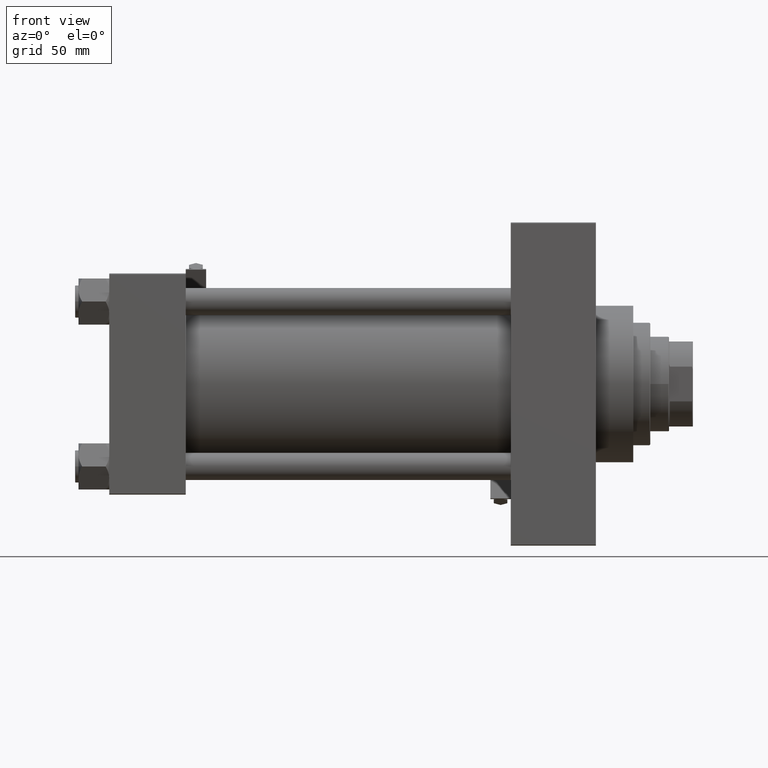
[diagram: clean part render]
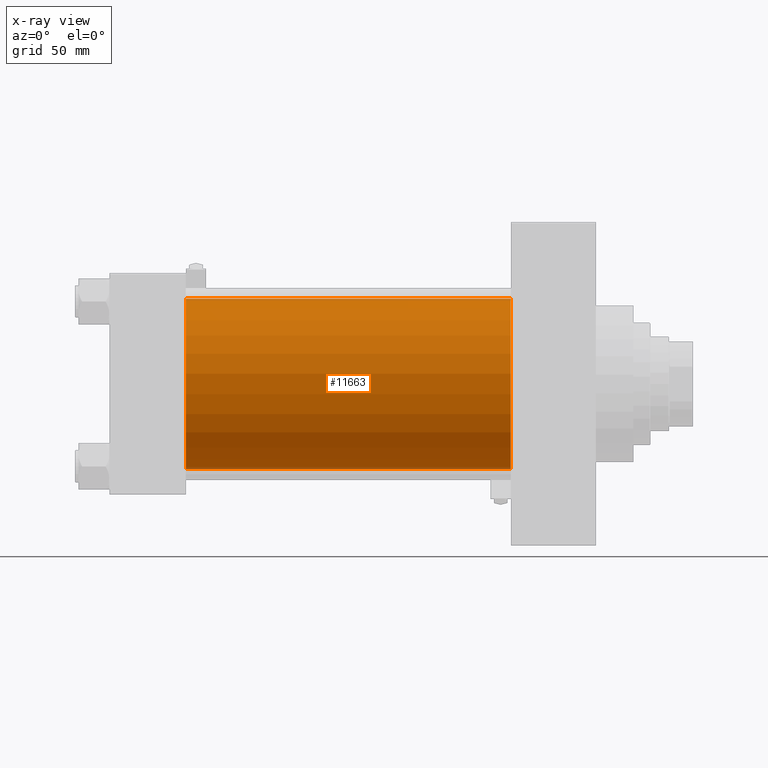
[diagram: x-ray — body ghosted, one internal face saturated and labeled with its STEP entity id]
A machine part, front view, then the same camera in x-ray: the body is ghosted and one INTERNAL B-rep face — a face not visible from any outside direction — is saturated and labeled: STEP entity #11663.
In plain terms, the highlighted cylindrical surface (partial cylindrical patch) has radius 50 mm, axis along (-1, -0, -0).
Its self-contained STEP definition (entity closure, byte-faithful):
#188 = DIRECTION ( 'NONE',  ( 1.000000000000000000, 0.000000000000000000, 0.000000000000000000 ) ) ;
#3325 = EDGE_CURVE ( 'NONE', #26399, #10008, #36740, .T. ) ;
#4724 = EDGE_LOOP ( 'NONE', ( #35143, #13714, #30903, #9169 ) ) ;
#8630 = CYLINDRICAL_SURFACE ( 'NONE', #31753, 50.00000000000000000 ) ;
#8866 = DIRECTION ( 'NONE',  ( 0.000000000000000000, 0.000000000000000000, 1.000000000000000000 ) ) ;
#9169 = ORIENTED_EDGE ( 'NONE', *, *, #27159, .F. ) ;
#10008 = VERTEX_POINT ( 'NONE', #31682 ) ;
#11663 = ADVANCED_FACE ( 'NONE', ( #12577 ), #8630, .F. ) ;
#11865 = EDGE_CURVE ( 'NONE', #47853, #10008, #15189, .T. ) ;
#11886 = CARTESIAN_POINT ( 'NONE',  ( 45.00000000000000000, -2.602085213965210642E-15, 50.00000000000000000 ) ) ;
#12577 = FACE_OUTER_BOUND ( 'NONE', #4724, .T. ) ;
#13241 = VECTOR ( 'NONE', #39606, 1000.000000000000000 ) ;
#13556 = EDGE_CURVE ( 'NONE', #45501, #26399, #46040, .T. ) ;
#13698 = CARTESIAN_POINT ( 'NONE',  ( 236.0000000000000000, -2.602085213965210642E-15, 50.00000000000000000 ) ) ;
#13714 = ORIENTED_EDGE ( 'NONE', *, *, #3325, .T. ) ;
#14269 = DIRECTION ( 'NONE',  ( -1.000000000000000000, -0.000000000000000000, -0.000000000000000000 ) ) ;
#14416 = AXIS2_PLACEMENT_3D ( 'NONE', #18947, #188, #29824 ) ;
#15189 = CIRCLE ( 'NONE', #14416, 50.00000000000000000 ) ;
#18947 = CARTESIAN_POINT ( 'NONE',  ( 45.00000000000000000, -2.602085213965210642E-15, 0.000000000000000000 ) ) ;
#21799 = CARTESIAN_POINT ( 'NONE',  ( 236.0000000000000000, -2.602085213965210642E-15, 50.00000000000000000 ) ) ;
#24180 = CARTESIAN_POINT ( 'NONE',  ( 236.0000000000000000, -2.602085213965210642E-15, 0.000000000000000000 ) ) ;
#26399 = VERTEX_POINT ( 'NONE', #47063 ) ;
#27159 = EDGE_CURVE ( 'NONE', #45501, #47853, #39867, .T. ) ;
#27647 = DIRECTION ( 'NONE',  ( -1.000000000000000000, -0.000000000000000000, -0.000000000000000000 ) ) ;
#29824 = DIRECTION ( 'NONE',  ( 0.000000000000000000, 0.000000000000000000, -1.000000000000000000 ) ) ;
#30903 = ORIENTED_EDGE ( 'NONE', *, *, #11865, .F. ) ;
#31682 = CARTESIAN_POINT ( 'NONE',  ( 45.00000000000000000, 3.521148781771555838E-15, -50.00000000000000000 ) ) ;
#31753 = AXIS2_PLACEMENT_3D ( 'NONE', #24180, #27647, #8866 ) ;
#33037 = CARTESIAN_POINT ( 'NONE',  ( 236.0000000000000000, 3.521148781771555838E-15, -50.00000000000000000 ) ) ;
#35143 = ORIENTED_EDGE ( 'NONE', *, *, #13556, .T. ) ;
#36457 = CARTESIAN_POINT ( 'NONE',  ( 236.0000000000000000, -2.602085213965210642E-15, 0.000000000000000000 ) ) ;
#36740 = LINE ( 'NONE', #33037, #38886 ) ;
#38886 = VECTOR ( 'NONE', #14269, 1000.000000000000000 ) ;
#39189 = DIRECTION ( 'NONE',  ( 0.000000000000000000, 0.000000000000000000, -1.000000000000000000 ) ) ;
#39606 = DIRECTION ( 'NONE',  ( -1.000000000000000000, -0.000000000000000000, -0.000000000000000000 ) ) ;
#39867 = LINE ( 'NONE', #13698, #13241 ) ;
#44448 = AXIS2_PLACEMENT_3D ( 'NONE', #36457, #47829, #39189 ) ;
#45501 = VERTEX_POINT ( 'NONE', #21799 ) ;
#46040 = CIRCLE ( 'NONE', #44448, 50.00000000000000000 ) ;
#47063 = CARTESIAN_POINT ( 'NONE',  ( 236.0000000000000000, 3.521148781771555838E-15, -50.00000000000000000 ) ) ;
#47829 = DIRECTION ( 'NONE',  ( 1.000000000000000000, 0.000000000000000000, 0.000000000000000000 ) ) ;
#47853 = VERTEX_POINT ( 'NONE', #11886 ) ;